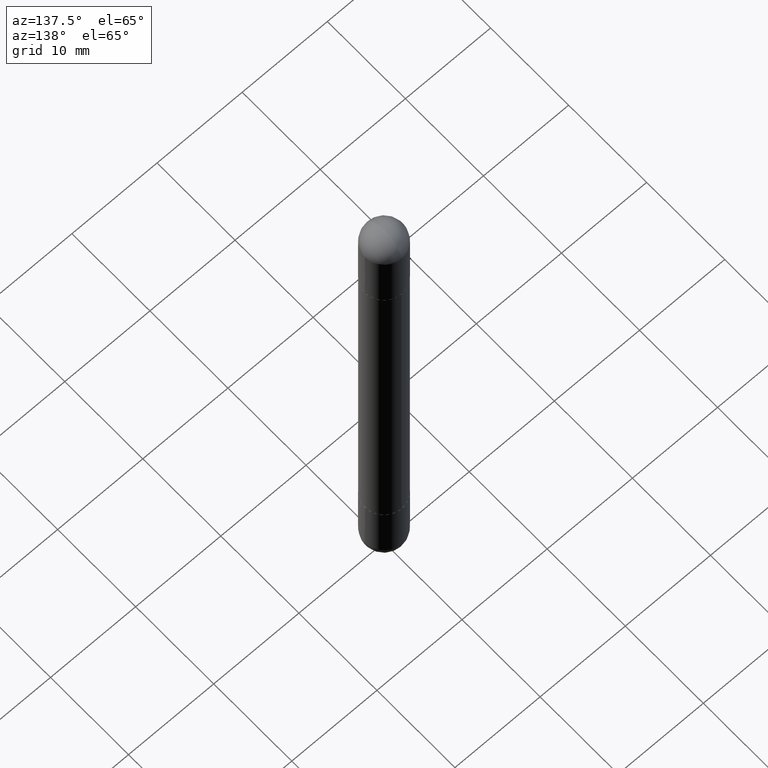
[diagram: clean part render]
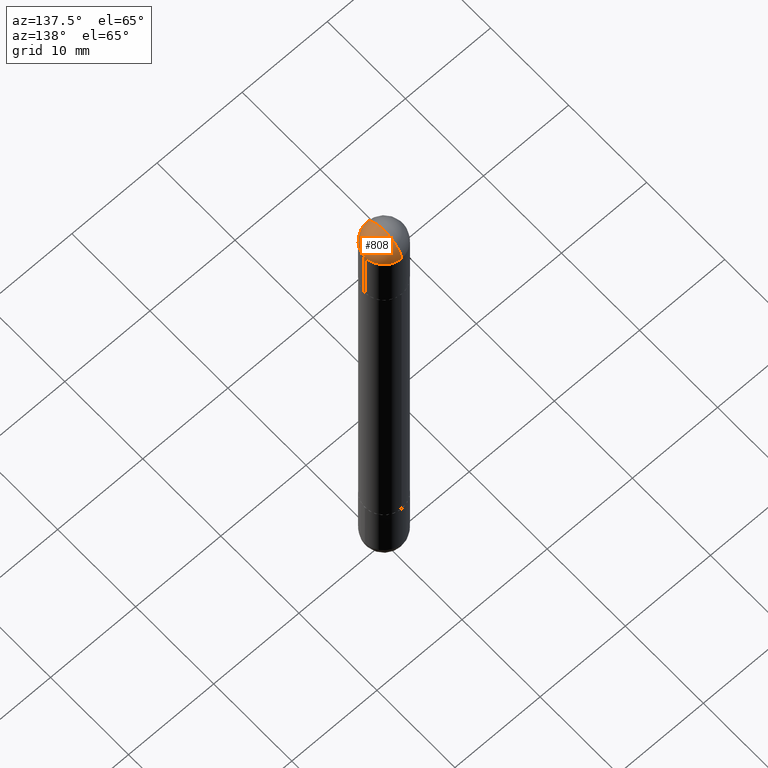
[diagram: same view with one face highlighted and labeled with its STEP entity id]
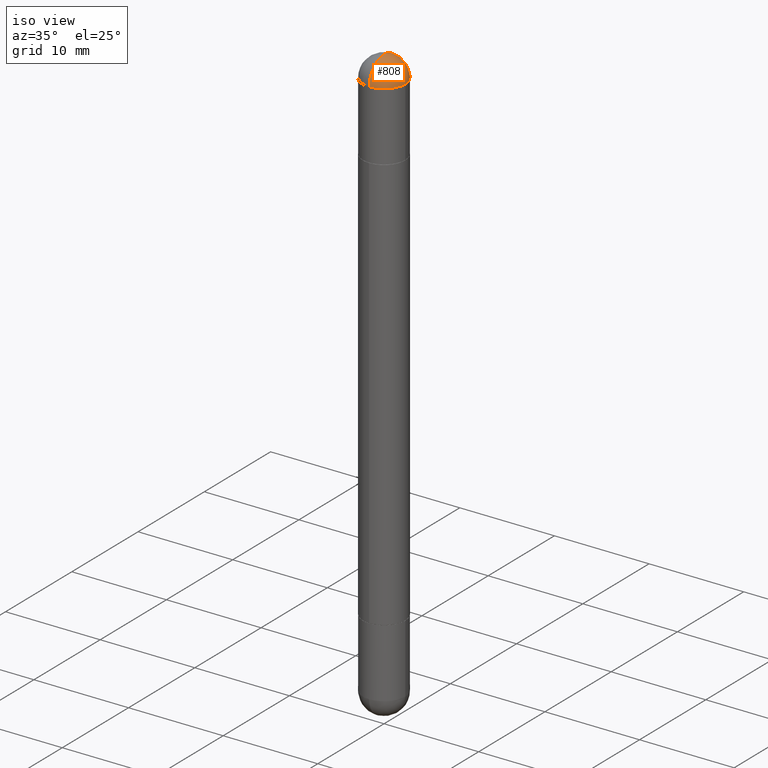
[diagram: same view with one face highlighted and labeled with its STEP entity id]
A machine part, auxiliary view. The second image highlights one B-rep face of the part: STEP entity #808.
A second angle (iso view) of the same face is appended — the face is thin or edge-on in the first view.
In plain terms, the highlighted spherical surface has radius 2.2504 mm.
Its self-contained STEP definition (entity closure, byte-faithful):
#39 = EDGE_LOOP ( 'NONE', ( #688, #531, #483, #206 ) ) ;
#44 = CIRCLE ( 'NONE', #774, 0.08859999999999999820 ) ;
#71 = CIRCLE ( 'NONE', #249, 0.08860000000000022025 ) ;
#100 = DIRECTION ( 'NONE',  ( 1.000000000000000000, -6.860497997771530774E-15, -4.840798879624142912E-29 ) ) ;
#128 = DIRECTION ( 'NONE',  ( 6.982962677686265922E-15, 1.000000000000000000, 3.468768614980009882E-15 ) ) ;
#144 = CIRCLE ( 'NONE', #496, 0.08859999999999999820 ) ;
#206 = ORIENTED_EDGE ( 'NONE', *, *, #450, .T. ) ;
#234 = CARTESIAN_POINT ( 'NONE',  ( 5.517707965839106462E-29, -8.824758286251204155E-15, -0.08859999999999998432 ) ) ;
#249 = AXIS2_PLACEMENT_3D ( 'NONE', #268, #649, #449 ) ;
#268 = CARTESIAN_POINT ( 'NONE',  ( 5.517707965839106462E-29, -8.824758286251204155E-15, -0.08859999999999998432 ) ) ;
#277 = DIRECTION ( 'NONE',  ( 6.860497997771530774E-15, 1.000000000000000000, 0.000000000000000000 ) ) ;
#281 = DIRECTION ( 'NONE',  ( 1.000000000000000000, -6.982962677686269077E-15, 0.000000000000000000 ) ) ;
#323 = VERTEX_POINT ( 'NONE', #341 ) ;
#341 = CARTESIAN_POINT ( 'NONE',  ( 5.738164888728174729E-29, -9.128678347552484260E-15, 2.390366994456230070E-16 ) ) ;
#351 = VERTEX_POINT ( 'NONE', #681 ) ;
#372 = CARTESIAN_POINT ( 'NONE',  ( 5.848827743752992709E-29, -8.350575918111152281E-15, -0.08859999999999998432 ) ) ;
#430 = FACE_OUTER_BOUND ( 'NONE', #39, .T. ) ;
#449 = DIRECTION ( 'NONE',  ( -6.982962677686265133E-15, -1.000000000000000000, 0.000000000000000000 ) ) ;
#450 = EDGE_CURVE ( 'NONE', #605, #718, #144, .T. ) ;
#473 = CARTESIAN_POINT ( 'NONE',  ( 5.517707965839106462E-29, -8.824758286251204155E-15, -0.08859999999999998432 ) ) ;
#477 = CARTESIAN_POINT ( 'NONE',  ( 6.186904932430607369E-16, 0.08859999999999150500, -0.08859999999999966513 ) ) ;
#483 = ORIENTED_EDGE ( 'NONE', *, *, #707, .T. ) ;
#486 = DIRECTION ( 'NONE',  ( 1.000000000000000000, -6.982962677686269077E-15, 0.000000000000000000 ) ) ;
#496 = AXIS2_PLACEMENT_3D ( 'NONE', #372, #497, #486 ) ;
#497 = DIRECTION ( 'NONE',  ( 2.445468806185136597E-29, -3.491481338843145583E-15, 1.000000000000000000 ) ) ;
#528 = DIRECTION ( 'NONE',  ( 2.445468806185136597E-29, -3.491481338843145583E-15, 1.000000000000000000 ) ) ;
#531 = ORIENTED_EDGE ( 'NONE', *, *, #784, .T. ) ;
#537 = SPHERICAL_SURFACE ( 'NONE', #757, 0.08860000000000022025 ) ;
#571 = CARTESIAN_POINT ( 'NONE',  ( 0.08859999999999999820, -8.471032024301239972E-15, -0.08859999999999998432 ) ) ;
#605 = VERTEX_POINT ( 'NONE', #571 ) ;
#649 = DIRECTION ( 'NONE',  ( -1.000000000000000000, 6.982962677686265922E-15, 4.883557194083112340E-29 ) ) ;
#681 = CARTESIAN_POINT ( 'NONE',  ( -6.078401226025015392E-16, -0.08860000000000868570, -0.08860000000000028963 ) ) ;
#688 = ORIENTED_EDGE ( 'NONE', *, *, #763, .F. ) ;
#707 = EDGE_CURVE ( 'NONE', #351, #605, #44, .T. ) ;
#718 = VERTEX_POINT ( 'NONE', #477 ) ;
#724 = CARTESIAN_POINT ( 'NONE',  ( 5.848827743752992709E-29, -8.350575918111152281E-15, -0.08859999999999998432 ) ) ;
#725 = CIRCLE ( 'NONE', #744, 0.08860000000000022025 ) ;
#744 = AXIS2_PLACEMENT_3D ( 'NONE', #473, #100, #277 ) ;
#757 = AXIS2_PLACEMENT_3D ( 'NONE', #234, #811, #128 ) ;
#763 = EDGE_CURVE ( 'NONE', #323, #718, #71, .T. ) ;
#774 = AXIS2_PLACEMENT_3D ( 'NONE', #724, #528, #281 ) ;
#784 = EDGE_CURVE ( 'NONE', #323, #351, #725, .T. ) ;
#808 = ADVANCED_FACE ( 'NONE', ( #430 ), #537, .T. ) ;
#811 = DIRECTION ( 'NONE',  ( 1.000000000000000000, -6.982962677686265922E-15, -4.883557194083112901E-29 ) ) ;